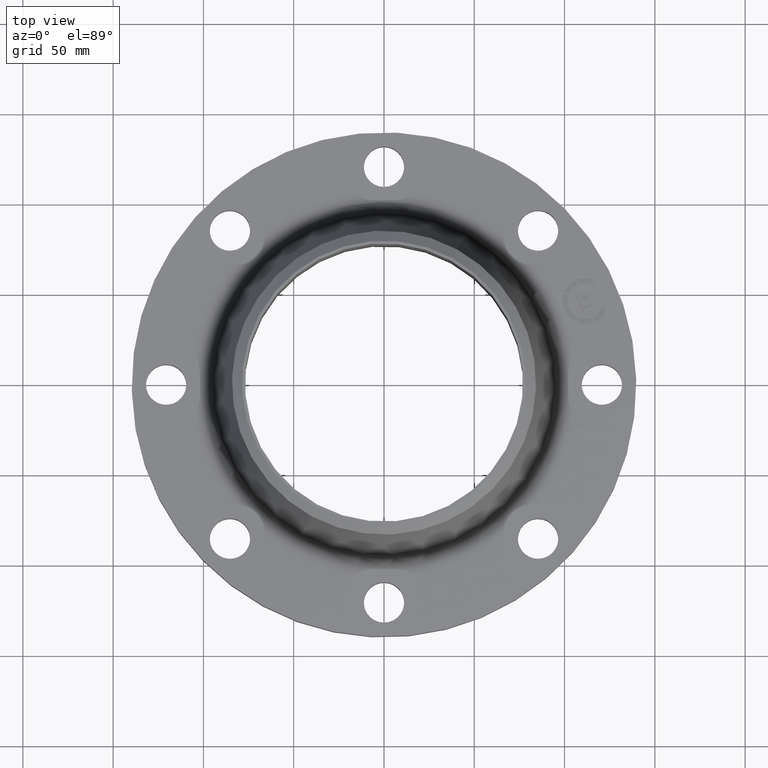
[diagram: clean part render]
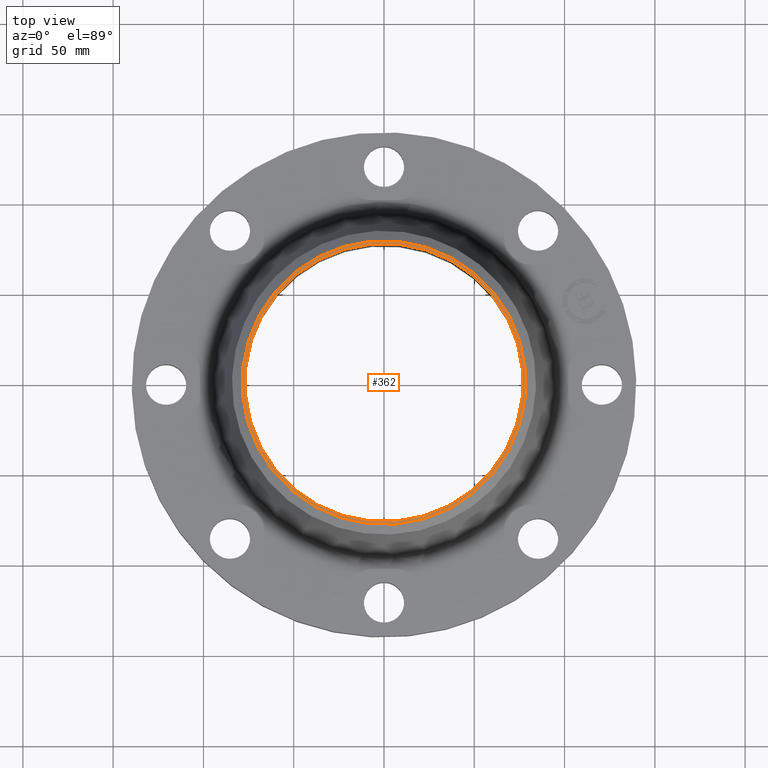
[diagram: same view with one face highlighted and labeled with its STEP entity id]
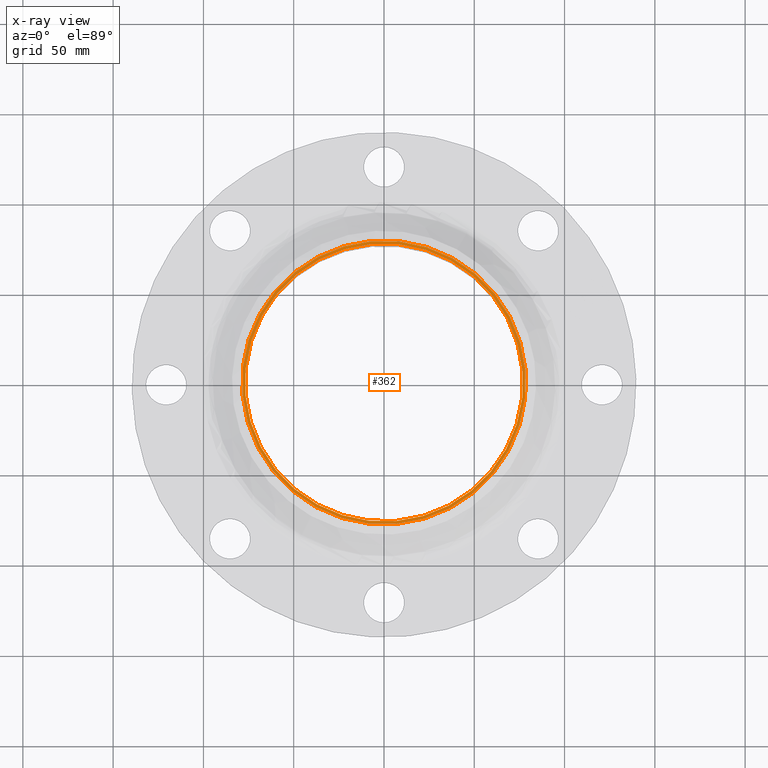
[diagram: x-ray of the same camera — body ghosted, the highlighted face saturated]
A machine part, top view. The second image highlights one B-rep face of the part: STEP entity #362.
The next image is the same camera in x-ray: the body ghosted, the highlighted face saturated — about 0% of this face is hidden behind the body in this view.
In plain terms, the highlighted planar face has unit normal (0, -0, -1).
Its self-contained STEP definition (entity closure, byte-faithful):
#306=AXIS2_PLACEMENT_3D('Circle Axis2P3D',#304,#305,$) ;
#325=AXIS2_PLACEMENT_3D('Circle Axis2P3D',#323,#324,$) ;
#338=AXIS2_PLACEMENT_3D('Plane Axis2P3D',#335,#336,#337) ;
#346=AXIS2_PLACEMENT_3D('Circle Axis2P3D',#344,#345,$) ;
#355=AXIS2_PLACEMENT_3D('Circle Axis2P3D',#353,#354,$) ;
#301=CARTESIAN_POINT('Vertex',(1.48382204199,2.71611802906,3.50000000001)) ;
#304=CARTESIAN_POINT('Axis2P3D Location',(0.,0.,3.50000000001)) ;
#308=CARTESIAN_POINT('Vertex',(-1.48382204199,-2.71611802906,3.50000000001)) ;
#323=CARTESIAN_POINT('Axis2P3D Location',(0.,0.,3.50000000001)) ;
#335=CARTESIAN_POINT('Axis2P3D Location',(0.,0.,3.50000000001)) ;
#344=CARTESIAN_POINT('Axis2P3D Location',(-2.79741234551E-016,-2.09805925913E-016,3.50000000001)) ;
#348=CARTESIAN_POINT('Vertex',(-1.45385794582,-2.66126911894,3.50000000001)) ;
#350=CARTESIAN_POINT('Vertex',(1.45385794582,2.66126911894,3.50000000001)) ;
#353=CARTESIAN_POINT('Axis2P3D Location',(-5.59482469102E-016,-1.39870617276E-016,3.50000000001)) ;
#305=DIRECTION('Axis2P3D Direction',(0.,-0.,-0.0393700787402)) ;
#324=DIRECTION('Axis2P3D Direction',(0.,-0.,-0.0393700787402)) ;
#336=DIRECTION('Axis2P3D Direction',(0.,-0.,-0.0393700787402)) ;
#337=DIRECTION('Axis2P3D XDirection',(0.0393700787402,0.,-0.)) ;
#345=DIRECTION('Axis2P3D Direction',(0.,-0.,-0.0393700787402)) ;
#354=DIRECTION('Axis2P3D Direction',(0.,-0.,-0.0393700787402)) ;
#341=ORIENTED_EDGE('',*,*,#327,.F.) ;
#342=ORIENTED_EDGE('',*,*,#310,.F.) ;
#359=ORIENTED_EDGE('',*,*,#352,.T.) ;
#360=ORIENTED_EDGE('',*,*,#357,.T.) ;
#361=FACE_BOUND('',#358,.T.) ;
#362=ADVANCED_FACE('PartBody',(#343,#361),#339,.F.) ;
#307=CIRCLE('generated circle',#306,3.09500000001) ;
#326=CIRCLE('generated circle',#325,3.09500000001) ;
#347=CIRCLE('generated circle',#346,3.03250000001) ;
#356=CIRCLE('generated circle',#355,3.03250000001) ;
#310=EDGE_CURVE('',#302,#309,#307,.T.) ;
#327=EDGE_CURVE('',#309,#302,#326,.T.) ;
#352=EDGE_CURVE('',#349,#351,#347,.T.) ;
#357=EDGE_CURVE('',#351,#349,#356,.T.) ;
#340=EDGE_LOOP('',(#341,#342)) ;
#358=EDGE_LOOP('',(#359,#360)) ;
#343=FACE_OUTER_BOUND('',#340,.T.) ;
#339=PLANE('',#338) ;
#302=VERTEX_POINT('',#301) ;
#309=VERTEX_POINT('',#308) ;
#349=VERTEX_POINT('',#348) ;
#351=VERTEX_POINT('',#350) ;